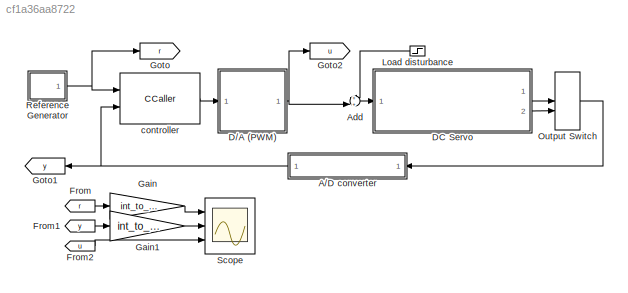
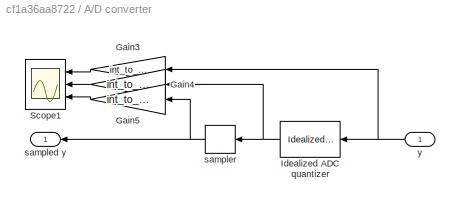
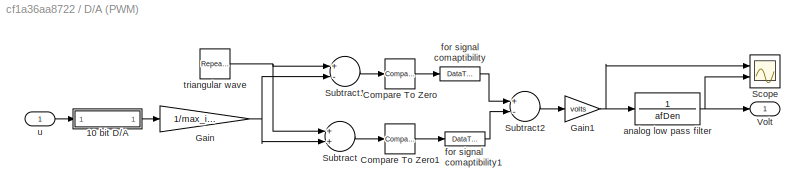
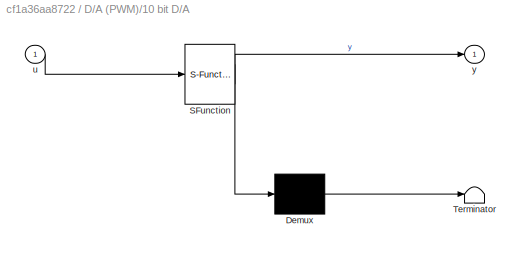
MODEL slx_cf1a36aa8722
KIND model
CONFIG AbsTol = auto
CONFIG EnableMultiTasking = off
CONFIG FixedStep = 0.0001
CONFIG InitFcn = initialize
CONFIG MaxStep = auto
CONFIG MinStep = auto
CONFIG RelTol = 1e-3
CONFIG SampleTimeConstraint = Unconstrained
CONFIG Solver = FixedStepAuto
CONFIG SolverName = FixedStepAuto
CONFIG StartTime = 0.0
CONFIG StopTime = 20.0
BLOCK [SubSystem] A//D converter
  Ports = [1, 1]
  RequestExecContextInheritance = off
BLOCK [Gain] A//D converter/Gain3
  Gain = int_to_volt
  OutDataTypeStr = Inherit: Inherit via internal rule
  ParamDataTypeStr = Inherit: Inherit via internal rule
  SaturateOnIntegerOverflow = off
BLOCK [Gain] A//D converter/Gain4
  Gain = int_to_volt
  OutDataTypeStr = Inherit: Inherit via internal rule
  ParamDataTypeStr = Inherit: Inherit via internal rule
  SaturateOnIntegerOverflow = off
BLOCK [Gain] A//D converter/Gain5
  Gain = int_to_volt
  OutDataTypeStr = Inherit: Inherit via internal rule
  ParamDataTypeStr = Inherit: Inherit via internal rule
  SaturateOnIntegerOverflow = off
BLOCK [Reference] A//D converter/Idealized ADC quantizer  REF=simulink_extras/Additional
Discrete/Idealized ADC quantizer
  AttributesFormatString = (settings: %<NumberOfConverterBits>-bit converter\nVmin: %<Vmin>, Vmax: %<Vmax>)
  Ports = [1, 1]
  SourceBlock = simulink_extras/Additional\nDiscrete/Idealized ADC quantizer
  SourceProductBaseCode = SL
  SourceProductName = Simulink
  SourceType = IdealADC
BLOCK [Scope] A//D converter/Scope1
  Floating = off
  NumInputPorts = 3
  Ports = [3]
  ScopeSpecificationString = Simulink.scopes.TimeScopeBlockCfg('CurrentConfiguration', extmgr.ConfigurationSet(extmgr.Configuration('Core','General UI',true),extmgr.Configuration('Core','Source UI',true),extmgr.Configuration('Sources','WiredSimulink',true,'DataLoggingVariableName','ScopeData1'),extmgr.Configuration('Visuals','Time Domain',true,'SerializedDisplays',{struct('MinYLimReal','-6.42513','MaxYLimReal','6.22606','YLab...<+1616ch>
BLOCK [Outport] A//D converter/sampled y
  IconDisplay = Port number
BLOCK [RateTransition] A//D converter/sampler
  OutPortSampleTime = st
BLOCK [Inport] A//D converter/y
  IconDisplay = Port number
BLOCK [Sum] Add
  IconShape = round
  InputSameDT = off
  Inputs = ++|
  OutDataTypeStr = Inherit: Inherit via internal rule
  Ports = [2, 1]
  SaturateOnIntegerOverflow = off
BLOCK [SubSystem] D//A (PWM)
  Ports = [1, 1]
  RequestExecContextInheritance = off
BLOCK [SubSystem] D//A (PWM)/10 bit D//A
  ErrorFcn = Stateflow.Translate.translate
  PermitHierarchicalResolution = ExplicitOnly
  Ports = [1, 1]
  RequestExecContextInheritance = off
  SFBlockType = MATLAB Function
  TreatAsAtomicUnit = on
BLOCK [Demux] D//A (PWM)/10 bit D//A/ Demux 
  Outputs = 1
  Ports = [1, 1]
BLOCK [S-Function] D//A (PWM)/10 bit D//A/ SFunction 
  EnableBusSupport = on
  FunctionName = sf_sfun
  PortCounts = [1 2]
  Ports = [1, 2]
  SFcnIsStateOwnerBlock = off
  SFunctionDeploymentMode = off
  Tag = Stateflow S-Function 2
BLOCK [Terminator] D//A (PWM)/10 bit D//A/ Terminator 
BLOCK [Inport] D//A (PWM)/10 bit D//A/u
  IconDisplay = Port number
BLOCK [Outport] D//A (PWM)/10 bit D//A/y
  IconDisplay = Port number
BLOCK [Reference] D//A (PWM)/Compare To Zero  REF=simulink/Logic and Bit
Operations/Compare
To Zero
  Ports = [1, 1]
  SourceBlock = simulink/Logic and Bit\nOperations/Compare\nTo Zero
  SourceProductBaseCode = SL
  SourceProductName = Simulink
  SourceType = Compare To Zero
BLOCK [Reference] D//A (PWM)/Compare To Zero1  REF=simulink/Logic and Bit
Operations/Compare
To Zero
  Ports = [1, 1]
  SourceBlock = simulink/Logic and Bit\nOperations/Compare\nTo Zero
  SourceProductBaseCode = SL
  SourceProductName = Simulink
  SourceType = Compare To Zero
BLOCK [Gain] D//A (PWM)/Gain
  Gain = 1/max_int10
  OutDataTypeStr = Inherit: Inherit via internal rule
  ParamDataTypeStr = Inherit: Inherit via internal rule
  SaturateOnIntegerOverflow = off
BLOCK [Gain] D//A (PWM)/Gain1
  Gain = volts
  OutDataTypeStr = Inherit: Inherit via internal rule
  ParamDataTypeStr = Inherit: Inherit via internal rule
  SaturateOnIntegerOverflow = off
BLOCK [Scope] D//A (PWM)/Scope
  Floating = off
  NumInputPorts = 2
  Ports = [2]
  ScopeSpecificationString = Simulink.scopes.TimeScopeBlockCfg('CurrentConfiguration', extmgr.ConfigurationSet(extmgr.Configuration('Core','General UI',true),extmgr.Configuration('Core','Source UI',true),extmgr.Configuration('Sources','WiredSimulink',true,'DataLoggingVariableName','ScopeData1'),extmgr.Configuration('Visuals','Time Domain',true,'SerializedDisplays',{struct('MinYLimReal','-12.5','MaxYLimReal','12.5','YLabelReal...<+1570ch>
BLOCK [Sum] D//A (PWM)/Subtract
  InputSameDT = off
  OutDataTypeStr = Inherit: Inherit via internal rule
  Ports = [2, 1]
  SaturateOnIntegerOverflow = off
BLOCK [Sum] D//A (PWM)/Subtract1
  InputSameDT = off
  Inputs = +-
  OutDataTypeStr = Inherit: Inherit via internal rule
  Ports = [2, 1]
  SaturateOnIntegerOverflow = off
BLOCK [Sum] D//A (PWM)/Subtract2
  InputSameDT = off
  Inputs = +-
  OutDataTypeStr = Inherit: Inherit via internal rule
  Ports = [2, 1]
  SaturateOnIntegerOverflow = off
BLOCK [Outport] D//A (PWM)/Volt
  IconDisplay = Port number
BLOCK [TransferFcn] D//A (PWM)/analog low pass filter
  Denominator = afDen
  Numerator = 1
BLOCK [DataTypeConversion] D//A (PWM)/for signal comaptibility
  OutDataTypeStr = double
  OutMax = [511]
  OutMin = [-512]
  RndMeth = Floor
  SaturateOnIntegerOverflow = off
BLOCK [DataTypeConversion] D//A (PWM)/for signal comaptibility1
  OutDataTypeStr = double
  OutMax = [511]
  OutMin = [-512]
  RndMeth = Floor
  SaturateOnIntegerOverflow = off
BLOCK [Reference] D//A (PWM)/triangular wave  REF=simulink/Sources/Repeating
Sequence
  Ports = [0, 1]
  SourceBlock = simulink/Sources/Repeating\nSequence
  SourceProductBaseCode = SL
  SourceProductName = Simulink
  SourceType = Repeating table
BLOCK [Inport] D//A (PWM)/u
  IconDisplay = Port number
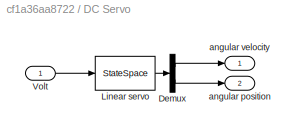
BLOCK [SubSystem] DC Servo 
  Ports = [1, 2]
  RequestExecContextInheritance = off
BLOCK [Demux] DC Servo /Demux
  DisplayOption = bar
  Outputs = 2
  Ports = [1, 2]
BLOCK [StateSpace] DC Servo /Linear servo
  A = A
  B = B*max_int10/10
  C = C
  D = D
  InitialCondition = [0,0]
  Ports = [1, 1]
BLOCK [Inport] DC Servo /Volt
  IconDisplay = Port number
BLOCK [Outport] DC Servo /angular position
  IconDisplay = Port number
  Port = 2
BLOCK [Outport] DC Servo /angular velocity
  IconDisplay = Port number
BLOCK [From] From
  GotoTag = r
BLOCK [From] From1
  GotoTag = y
BLOCK [From] From2
  GotoTag = u
BLOCK [Gain] Gain
  Gain = int_to_volt
  OutDataTypeStr = Inherit: Inherit via internal rule
  ParamDataTypeStr = Inherit: Inherit via internal rule
  SaturateOnIntegerOverflow = off
BLOCK [Gain] Gain1
  Gain = int_to_volt
  OutDataTypeStr = Inherit: Inherit via internal rule
  ParamDataTypeStr = Inherit: Inherit via internal rule
  SaturateOnIntegerOverflow = off
BLOCK [Goto] Goto
  GotoTag = r
BLOCK [Goto] Goto1
  GotoTag = y
BLOCK [Goto] Goto2
  GotoTag = u
BLOCK [Step] Load disturbance
  After = 1.5
  SampleTime = 0
  Time = 12
BLOCK [ManualSwitch] Output Switch
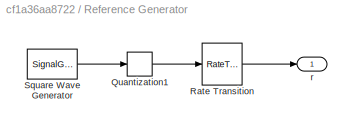
BLOCK [SubSystem] Reference Generator
  Ports = [0, 1]
  RequestExecContextInheritance = off
BLOCK [DataTypeConversion] Reference Generator/Quantization1
  OutDataTypeStr = int16
  OutMax = [511]
  OutMin = [-512]
  RndMeth = Floor
  SaturateOnIntegerOverflow = off
BLOCK [RateTransition] Reference Generator/Rate Transition
  OutPortSampleTime = st
BLOCK [SignalGenerator] Reference Generator/Square Wave Generator
  Amplitude = ramp
  Frequency = rfq
  Ports = [0, 1]
  WaveForm = square
BLOCK [Outport] Reference Generator/r
  IconDisplay = Port number
BLOCK [Scope] Scope
  Floating = off
  NumInputPorts = 3
  Ports = [3]
  ScopeSpecificationString = Simulink.scopes.TimeScopeBlockCfg('CurrentConfiguration', extmgr.ConfigurationSet(extmgr.Configuration('Core','General UI',true),extmgr.Configuration('Core','Source UI',true),extmgr.Configuration('Sources','WiredSimulink',true),extmgr.Configuration('Visuals','Time Domain',true,'SerializedDisplays',{struct('MinYLimReal','-11.19749','MaxYLimReal','12.35528','YLabelReal','','MinYLimMag','0.00000','Ma...<+1512ch>
BLOCK [CCaller] controller
  FunctionName = vel_float
  PortSpecificationStruct = %)30     .    6 4   8    (     @         %    "     ,    !     0         %  0 "0    $    _    07)G3F%M90  4&]R=$YA;64 4V-O<&4     26YD97@     5'EP90      4VEZ90      27-';&]B86P   X    P    !@    @    $          4    (     0    ,    !         !   P!O=70 #@   #     &    "     0         !0    @    !     P    $         $  # &]U=  .    .     8    (    !          %    "     $    &     0         0    !@...<+1437ch>
  Ports = [2, 1]
LINE A//D converter/Gain3:1 -> A//D converter/Scope1:1
LINE A//D converter/Gain4:1 -> A//D converter/Scope1:2
LINE A//D converter/Gain5:1 -> A//D converter/Scope1:3
NET A//D converter/Idealized ADC quantizer:1 -> A//D converter/Gain4:1, A//D converter/sampler:1
NET A//D converter/sampler:1 -> A//D converter/Gain5:1, A//D converter/sampled y:1
NET A//D converter/y:1 -> A//D converter/Gain3:1, A//D converter/Idealized ADC quantizer:1
NET A//D converter:1 -> Goto1:1, controller:2
LINE Add:1 -> DC Servo :1
LINE D//A (PWM)/10 bit D//A:1 -> D//A (PWM)/Gain:1
LINE D//A (PWM)/Compare To Zero1:1 -> D//A (PWM)/for signal comaptibility1:1
LINE D//A (PWM)/Compare To Zero:1 -> D//A (PWM)/for signal comaptibility:1
NET D//A (PWM)/Gain1:1 -> D//A (PWM)/Scope:1, D//A (PWM)/analog low pass filter:1
NET D//A (PWM)/Gain:1 -> D//A (PWM)/Subtract1:2, D//A (PWM)/Subtract:2
LINE D//A (PWM)/Subtract1:1 -> D//A (PWM)/Compare To Zero:1
LINE D//A (PWM)/Subtract2:1 -> D//A (PWM)/Gain1:1
LINE D//A (PWM)/Subtract:1 -> D//A (PWM)/Compare To Zero1:1
NET D//A (PWM)/analog low pass filter:1 -> D//A (PWM)/Scope:2, D//A (PWM)/Volt:1
LINE D//A (PWM)/for signal comaptibility1:1 -> D//A (PWM)/Subtract2:2
LINE D//A (PWM)/for signal comaptibility:1 -> D//A (PWM)/Subtract2:1
NET D//A (PWM)/triangular wave:1 -> D//A (PWM)/Subtract1:1, D//A (PWM)/Subtract:1
LINE D//A (PWM)/u:1 -> D//A (PWM)/10 bit D//A:1
NET D//A (PWM):1 -> Add:2, Goto2:1
LINE DC Servo /Demux:1 -> DC Servo /angular velocity:1
LINE DC Servo /Demux:2 -> DC Servo /angular position:1
LINE DC Servo /Linear servo:1 -> DC Servo /Demux:1
LINE DC Servo /Volt:1 -> DC Servo /Linear servo:1
LINE DC Servo :1 -> Output Switch:1
LINE DC Servo :2 -> Output Switch:2
LINE From1:1 -> Gain1:1
LINE From2:1 -> Scope:3
LINE From:1 -> Gain:1
LINE Gain1:1 -> Scope:2
LINE Gain:1 -> Scope:1
LINE Load disturbance:1 -> Add:1
LINE Output Switch:1 -> A//D converter:1
LINE Reference Generator/Quantization1:1 -> Reference Generator/Rate Transition:1
LINE Reference Generator/Rate Transition:1 -> Reference Generator/r:1
LINE Reference Generator/Square Wave Generator:1 -> Reference Generator/Quantization1:1
NET Reference Generator:1 -> Goto:1, controller:1
LINE controller:1 -> D//A (PWM):1
note: NET lines group one-source signal fan-out (src -> all destinations, sorted); 1:1 wires keep LINE
CHART D//A (PWM)/10 bit D//A states=1 transitions=1
  STATE_LABEL 'eML_blk_kernel()'
  STATE_LABEL 'SCRIPT:\n% this function emiulates the fact of having\n% a 10 bits D/A converter that can cause sign \n% inversion in case of overflow \n\nfunction y = fcn(u)\n\nif u>511\n    y = -512+(u-511);\n    return\nelseif u<-512\n    y = -(u+512);\n    return\nend\n\ny=u;\n\nend'
